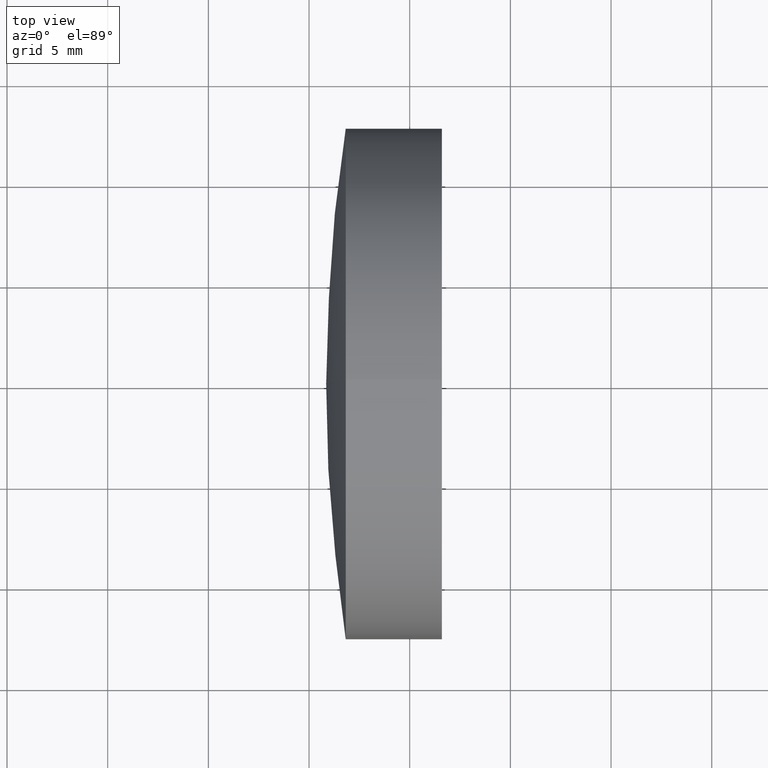
[diagram: clean part render]
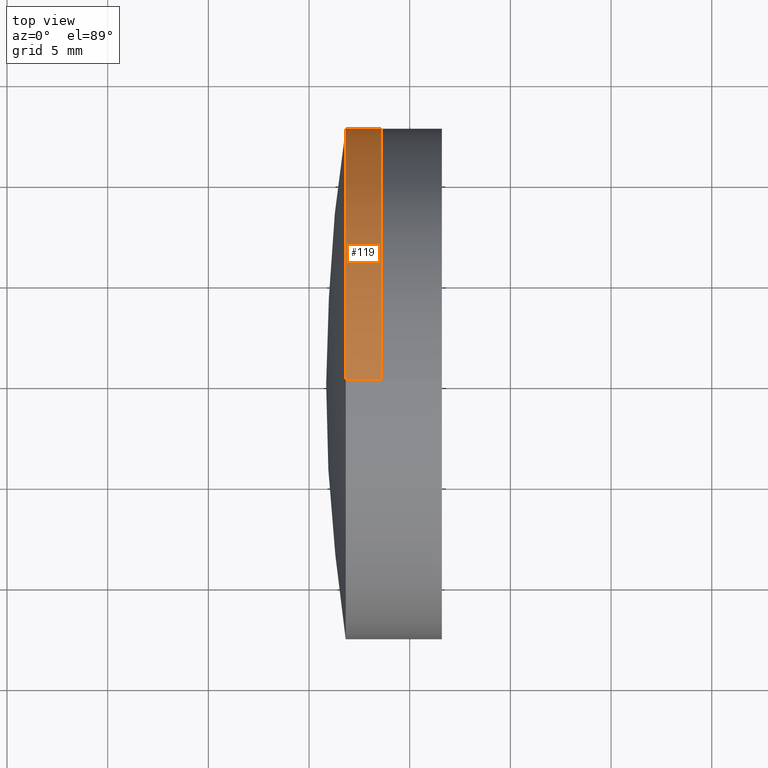
[diagram: same view with one face highlighted and labeled with its STEP entity id]
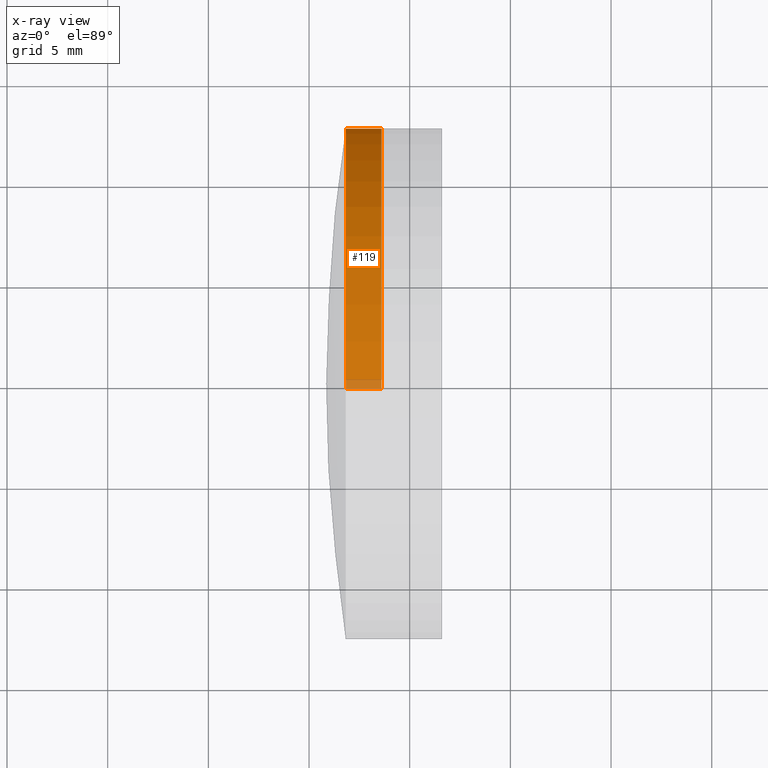
[diagram: x-ray of the same camera — body ghosted, the highlighted face saturated]
A machine part, top view. The second image highlights one B-rep face of the part: STEP entity #119.
The next image is the same camera in x-ray: the body ghosted, the highlighted face saturated — about 3% of this face is hidden behind the body in this view.
In plain terms, the highlighted cylindrical surface (partial cylindrical patch) has radius 12.7 mm, axis along (-1, -0, -0).
Its self-contained STEP definition (entity closure, byte-faithful):
#8 = CARTESIAN_POINT ( 'NONE',  ( 124.5233095260452400, 0.0000000000000000000, 12.69999999999971900 ) ) ;
#10 = EDGE_CURVE ( 'NONE', #26, #231, #109, .T. ) ;
#16 = VERTEX_POINT ( 'NONE', #72 ) ;
#19 = EDGE_LOOP ( 'NONE', ( #157, #345, #137, #331 ) ) ;
#26 = VERTEX_POINT ( 'NONE', #304 ) ;
#28 = CARTESIAN_POINT ( 'NONE',  ( 366.8207835879254600, 0.0000000000000000000, 0.0000000000000000000 ) ) ;
#29 = CIRCLE ( 'NONE', #272, 12.69999999999971900 ) ;
#36 = DIRECTION ( 'NONE',  ( 0.0000000000000000000, 0.0000000000000000000, 1.000000000000000000 ) ) ;
#46 = LINE ( 'NONE', #323, #290 ) ;
#47 = CARTESIAN_POINT ( 'NONE',  ( 368.5899110541722100, 1.555301434917104100E-015, -12.69999999999971900 ) ) ;
#63 = DIRECTION ( 'NONE',  ( -1.000000000000000000, -0.0000000000000000000, -0.0000000000000000000 ) ) ;
#68 = EDGE_CURVE ( 'NONE', #231, #16, #29, .T. ) ;
#72 = CARTESIAN_POINT ( 'NONE',  ( 366.8207835879254600, 1.555301434917101200E-015, -12.69999999999997600 ) ) ;
#78 = FACE_OUTER_BOUND ( 'NONE', #19, .T. ) ;
#79 = AXIS2_PLACEMENT_3D ( 'NONE', #299, #189, #309 ) ;
#82 = AXIS2_PLACEMENT_3D ( 'NONE', #153, #155, #156 ) ;
#109 = LINE ( 'NONE', #8, #330 ) ;
#119 = ADVANCED_FACE ( 'NONE', ( #78 ), #204, .T. ) ;
#123 = EDGE_CURVE ( 'NONE', #277, #16, #46, .T. ) ;
#137 = ORIENTED_EDGE ( 'NONE', *, *, #68, .F. ) ;
#153 = CARTESIAN_POINT ( 'NONE',  ( 368.5899110541722100, 0.0000000000000000000, 0.0000000000000000000 ) ) ;
#155 = DIRECTION ( 'NONE',  ( -1.000000000000000000, -0.0000000000000000000, -0.0000000000000000000 ) ) ;
#156 = DIRECTION ( 'NONE',  ( 0.0000000000000000000, 0.0000000000000000000, 1.000000000000000000 ) ) ;
#157 = ORIENTED_EDGE ( 'NONE', *, *, #325, .T. ) ;
#160 = DIRECTION ( 'NONE',  ( -1.000000000000000000, -0.0000000000000000000, -0.0000000000000000000 ) ) ;
#169 = DIRECTION ( 'NONE',  ( -1.000000000000000000, -0.0000000000000000000, -0.0000000000000000000 ) ) ;
#189 = DIRECTION ( 'NONE',  ( -1.000000000000000000, -0.0000000000000000000, -0.0000000000000000000 ) ) ;
#204 = CYLINDRICAL_SURFACE ( 'NONE', #79, 12.69999999999971900 ) ;
#211 = CIRCLE ( 'NONE', #82, 12.69999999999971900 ) ;
#231 = VERTEX_POINT ( 'NONE', #246 ) ;
#246 = CARTESIAN_POINT ( 'NONE',  ( 366.8207835879254600, 0.0000000000000000000, 12.69999999999969600 ) ) ;
#272 = AXIS2_PLACEMENT_3D ( 'NONE', #28, #63, #36 ) ;
#277 = VERTEX_POINT ( 'NONE', #47 ) ;
#290 = VECTOR ( 'NONE', #160, 1000.000000000000000 ) ;
#299 = CARTESIAN_POINT ( 'NONE',  ( 124.5233095260452400, 0.0000000000000000000, 0.0000000000000000000 ) ) ;
#304 = CARTESIAN_POINT ( 'NONE',  ( 368.5899110541722100, 0.0000000000000000000, 12.69999999999971900 ) ) ;
#309 = DIRECTION ( 'NONE',  ( 0.0000000000000000000, 0.0000000000000000000, 1.000000000000000000 ) ) ;
#323 = CARTESIAN_POINT ( 'NONE',  ( 124.5233095260452400, 1.555301434917104100E-015, -12.69999999999971900 ) ) ;
#325 = EDGE_CURVE ( 'NONE', #26, #277, #211, .T. ) ;
#330 = VECTOR ( 'NONE', #169, 1000.000000000000000 ) ;
#331 = ORIENTED_EDGE ( 'NONE', *, *, #10, .F. ) ;
#345 = ORIENTED_EDGE ( 'NONE', *, *, #123, .T. ) ;